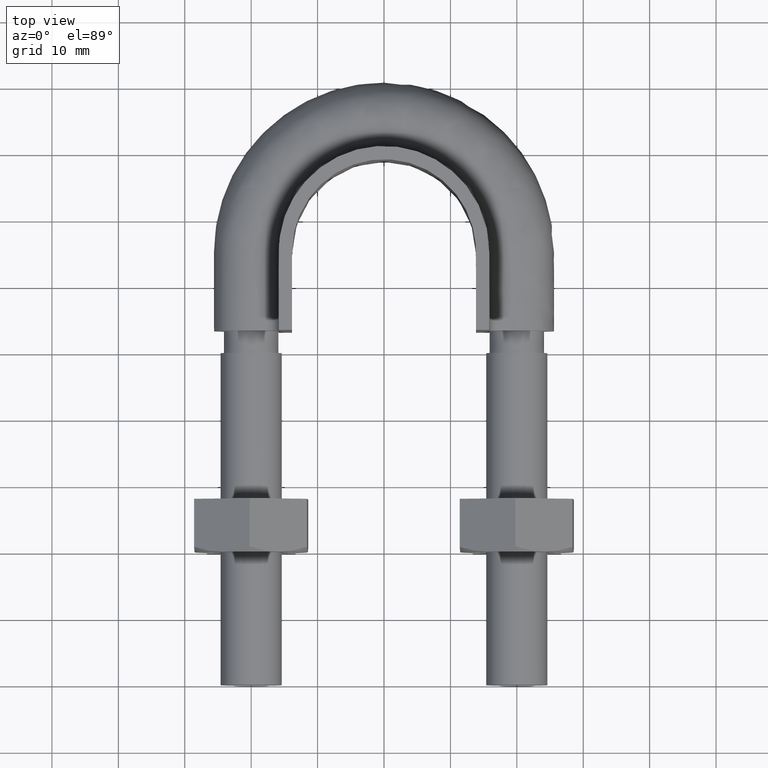
[diagram: clean part render]
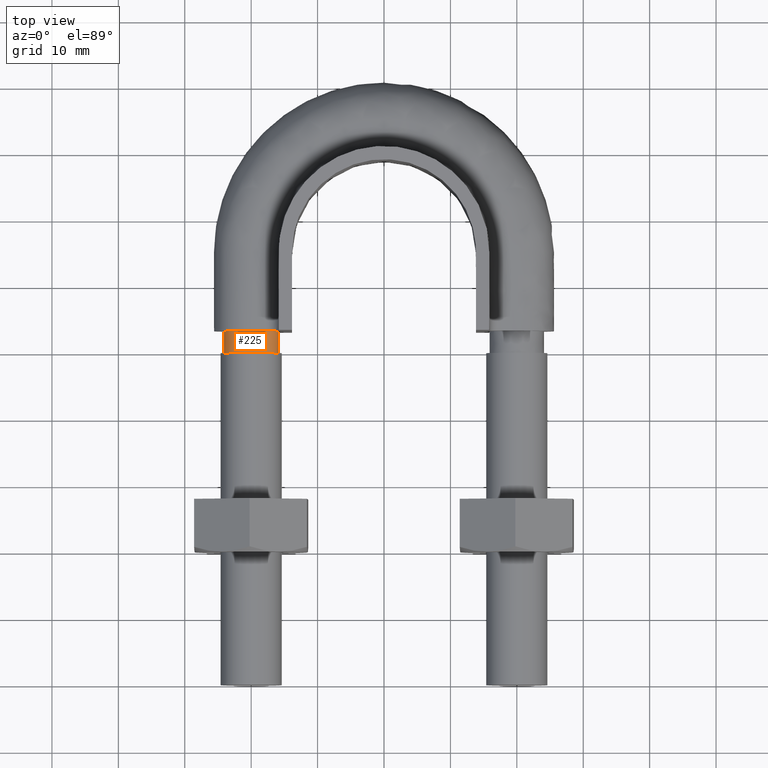
[diagram: same view with one face highlighted and labeled with its STEP entity id]
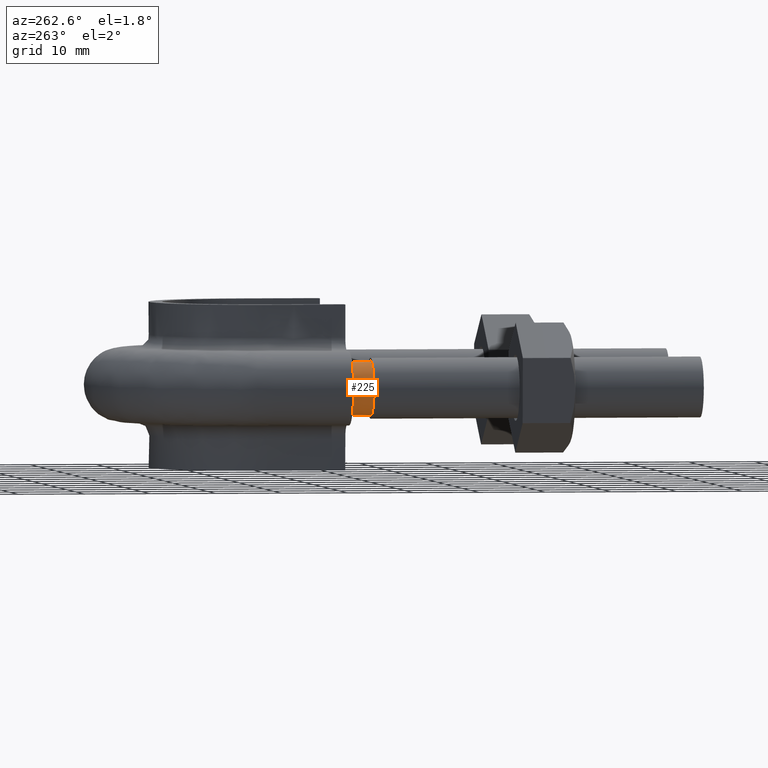
[diagram: same view with one face highlighted and labeled with its STEP entity id]
A machine part, top view. The second image highlights one B-rep face of the part: STEP entity #225.
A second angle (auxiliary view) of the same face is appended — the face is thin or edge-on in the first view.
In plain terms, the highlighted face is a SurfaceOfExtrusion surface.
Its self-contained STEP definition (entity closure, byte-faithful):
#225 = ADVANCED_FACE( '', ( #293, #294 ), #295, .F. );
#293 = FACE_OUTER_BOUND( '', #990, .T. );
#294 = FACE_OUTER_BOUND( '', #991, .T. );
#295 = SURFACE_OF_LINEAR_EXTRUSION( '', #992, #993 );
#990 = EDGE_LOOP( '', ( #1333 ) );
#991 = EDGE_LOOP( '', ( #1334 ) );
#992 = B_SPLINE_CURVE_WITH_KNOTS( '', 3, ( #1335, #1336, #1337, #1338, #1339, #1340, #1341, #1342, #1343, #1344 ), .UNSPECIFIED., .T., .F., ( 4, 1, 1, 1, 1, 1, 1, 4 ), ( -1.00000000000000, -0.857142857142857, -0.714285714285714, -0.571428571428571, -0.428571428571429, -0.285714285714286, -0.142857142857143, 0.000000000000000 ), .UNSPECIFIED. );
#993 = VECTOR( '', #1345, 1000.00000000000 );
#1333 = ORIENTED_EDGE( '', *, *, #1747, .T. );
#1334 = ORIENTED_EDGE( '', *, *, #1748, .F. );
#1335 = CARTESIAN_POINT( '', ( -15.9000000000000, 19.0000000000000, 4.33680868994202E-016 ) );
#1336 = CARTESIAN_POINT( '', ( -15.9000000000000, 19.0000000000000, 1.22184926194408 ) );
#1337 = CARTESIAN_POINT( '', ( -17.0768231851220, 19.0000000000000, 3.66554778583225 ) );
#1338 = CARTESIAN_POINT( '', ( -21.0432697263483, 19.0000000000000, 4.57086332538454 ) );
#1339 = CARTESIAN_POINT( '', ( -24.2241128848102, 19.0000000000000, 2.03422555230246 ) );
#1340 = CARTESIAN_POINT( '', ( -24.2241128848102, 19.0000000000000, -2.03422555230246 ) );
#1341 = CARTESIAN_POINT( '', ( -21.0432697263483, 19.0000000000000, -4.57086332538454 ) );
#1342 = CARTESIAN_POINT( '', ( -17.0768231851220, 19.0000000000000, -3.66554778583225 ) );
#1343 = CARTESIAN_POINT( '', ( -15.9000000000000, 19.0000000000000, -1.22184926194408 ) );
#1344 = CARTESIAN_POINT( '', ( -15.9000000000000, 19.0000000000000, 4.33680868994202E-016 ) );
#1345 = DIRECTION( '', ( 1.22460635382238E-016, 1.00000000000000, 0.000000000000000 ) );
#1747 = EDGE_CURVE( '', #1879, #1879, #1880, .T. );
#1748 = EDGE_CURVE( '', #1881, #1881, #1882, .T. );
#1879 = VERTEX_POINT( '', #2221 );
#1880 = B_SPLINE_CURVE_WITH_KNOTS( '', 3, ( #2222, #2223, #2224, #2225, #2226, #2227, #2228, #2229, #2230, #2231 ), .UNSPECIFIED., .T., .F., ( 4, 1, 1, 1, 1, 1, 1, 4 ), ( -1.00000000000000, -0.857142857142857, -0.714285714285714, -0.571428571428571, -0.428571428571429, -0.285714285714286, -0.142857142857143, 0.000000000000000 ), .UNSPECIFIED. );
#1881 = VERTEX_POINT( '', #2232 );
#1882 = B_SPLINE_CURVE_WITH_KNOTS( '', 3, ( #2233, #2234, #2235, #2236, #2237, #2238, #2239, #2240, #2241, #2242 ), .UNSPECIFIED., .T., .F., ( 4, 1, 1, 1, 1, 1, 1, 4 ), ( -1.00000000000000, -0.857142857142857, -0.714285714285714, -0.571428571428571, -0.428571428571429, -0.285714285714286, -0.142857142857143, 0.000000000000000 ), .UNSPECIFIED. );
#2221 = CARTESIAN_POINT( '', ( -15.9000000000000, 53.3000000000000, 4.33680868994202E-016 ) );
#2222 = CARTESIAN_POINT( '', ( -15.9000000000000, 53.3000000000000, 4.33680868994202E-016 ) );
#2223 = CARTESIAN_POINT( '', ( -15.9000000000000, 53.3000000000000, 1.22184926194408 ) );
#2224 = CARTESIAN_POINT( '', ( -17.0768231851220, 53.3000000000000, 3.66554778583225 ) );
#2225 = CARTESIAN_POINT( '', ( -21.0432697263483, 53.3000000000000, 4.57086332538454 ) );
#2226 = CARTESIAN_POINT( '', ( -24.2241128848102, 53.3000000000000, 2.03422555230246 ) );
#2227 = CARTESIAN_POINT( '', ( -24.2241128848102, 53.3000000000000, -2.03422555230246 ) );
#2228 = CARTESIAN_POINT( '', ( -21.0432697263483, 53.3000000000000, -4.57086332538454 ) );
#2229 = CARTESIAN_POINT( '', ( -17.0768231851220, 53.3000000000000, -3.66554778583225 ) );
#2230 = CARTESIAN_POINT( '', ( -15.9000000000000, 53.3000000000000, -1.22184926194408 ) );
#2231 = CARTESIAN_POINT( '', ( -15.9000000000000, 53.3000000000000, 4.33680868994202E-016 ) );
#2232 = CARTESIAN_POINT( '', ( -15.9000000000000, 50.0000000000000, 4.33680868994202E-016 ) );
#2233 = CARTESIAN_POINT( '', ( -15.9000000000000, 50.0000000000000, 4.33680868994202E-016 ) );
#2234 = CARTESIAN_POINT( '', ( -15.9000000000000, 50.0000000000000, 1.22184926194408 ) );
#2235 = CARTESIAN_POINT( '', ( -17.0768231851220, 50.0000000000000, 3.66554778583225 ) );
#2236 = CARTESIAN_POINT( '', ( -21.0432697263483, 50.0000000000000, 4.57086332538454 ) );
#2237 = CARTESIAN_POINT( '', ( -24.2241128848102, 50.0000000000000, 2.03422555230246 ) );
#2238 = CARTESIAN_POINT( '', ( -24.2241128848102, 50.0000000000000, -2.03422555230246 ) );
#2239 = CARTESIAN_POINT( '', ( -21.0432697263483, 50.0000000000000, -4.57086332538454 ) );
#2240 = CARTESIAN_POINT( '', ( -17.0768231851220, 50.0000000000000, -3.66554778583225 ) );
#2241 = CARTESIAN_POINT( '', ( -15.9000000000000, 50.0000000000000, -1.22184926194408 ) );
#2242 = CARTESIAN_POINT( '', ( -15.9000000000000, 50.0000000000000, 4.33680868994202E-016 ) );